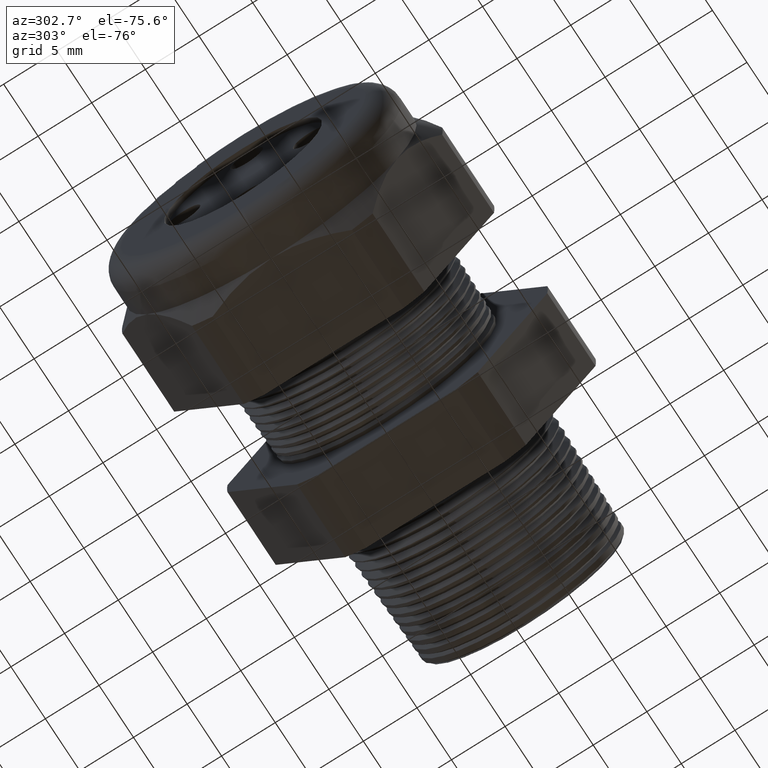
[diagram: clean part render]
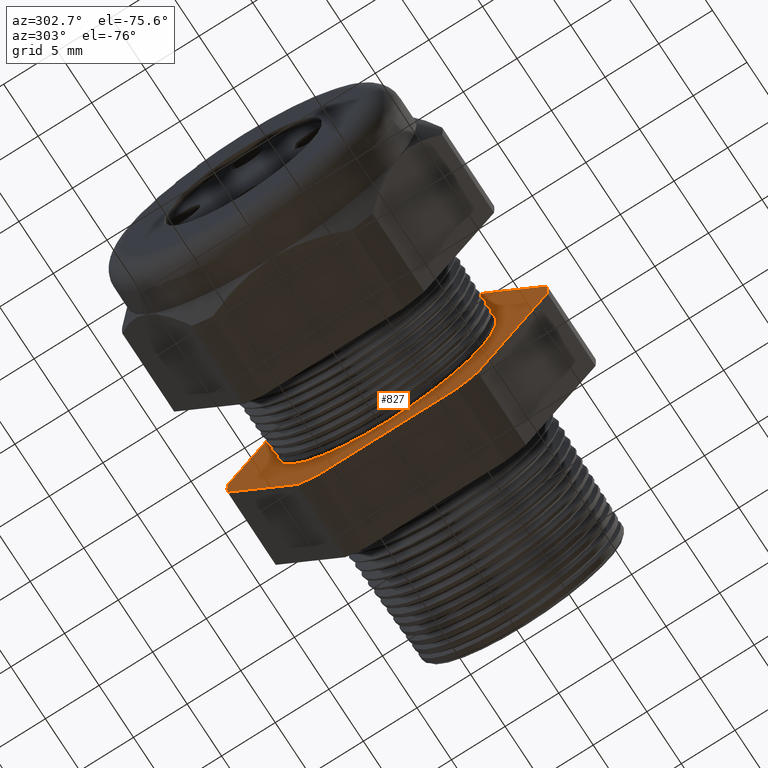
[diagram: same view with one face highlighted and labeled with its STEP entity id]
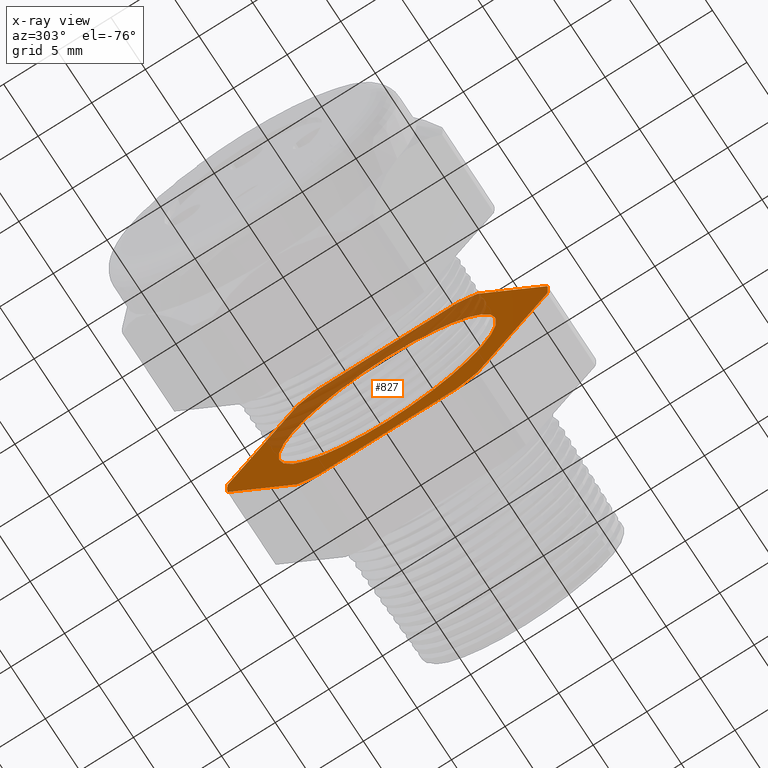
[diagram: x-ray of the same camera — body ghosted, the highlighted face saturated]
A machine part, auxiliary view. The second image highlights one B-rep face of the part: STEP entity #827.
The next image is the same camera in x-ray: the body ghosted, the highlighted face saturated — about 32% of this face is hidden behind the body in this view.
In plain terms, the highlighted planar face has unit normal (-1, 0, 0).
Its self-contained STEP definition (entity closure, byte-faithful):
#799 = EDGE_CURVE ( 'NONE', #824, #800, #3475, .T. ) ;
#800 = VERTEX_POINT ( 'NONE', #3466 ) ;
#801 = ORIENTED_EDGE ( 'NONE', *, *, #802, .T. ) ;
#802 = EDGE_CURVE ( 'NONE', #800, #803, #3465, .T. ) ;
#803 = VERTEX_POINT ( 'NONE', #3461 ) ;
#804 = ORIENTED_EDGE ( 'NONE', *, *, #805, .T. ) ;
#805 = EDGE_CURVE ( 'NONE', #803, #806, #3460, .T. ) ;
#806 = VERTEX_POINT ( 'NONE', #3517 ) ;
#807 = ORIENTED_EDGE ( 'NONE', *, *, #808, .T. ) ;
#808 = EDGE_CURVE ( 'NONE', #806, #809, #3516, .T. ) ;
#809 = VERTEX_POINT ( 'NONE', #3512 ) ;
#810 = EDGE_CURVE ( 'NONE', #836, #838, #3511, .T. ) ;
#811 = ORIENTED_EDGE ( 'NONE', *, *, #812, .T. ) ;
#812 = EDGE_CURVE ( 'NONE', #838, #813, #3506, .T. ) ;
#813 = VERTEX_POINT ( 'NONE', #3502 ) ;
#814 = ORIENTED_EDGE ( 'NONE', *, *, #815, .T. ) ;
#815 = EDGE_CURVE ( 'NONE', #813, #816, #3501, .T. ) ;
#816 = VERTEX_POINT ( 'NONE', #3496 ) ;
#817 = ORIENTED_EDGE ( 'NONE', *, *, #818, .T. ) ;
#818 = EDGE_CURVE ( 'NONE', #816, #819, #3495, .T. ) ;
#819 = VERTEX_POINT ( 'NONE', #3491 ) ;
#820 = ORIENTED_EDGE ( 'NONE', *, *, #821, .T. ) ;
#821 = EDGE_CURVE ( 'NONE', #819, #822, #3490, .T. ) ;
#822 = VERTEX_POINT ( 'NONE', #3550 ) ;
#823 = ORIENTED_EDGE ( 'NONE', *, *, #883, .T. ) ;
#824 = VERTEX_POINT ( 'NONE', #3549 ) ;
#827 = ADVANCED_FACE ( 'NONE', ( #3548, #3547 ), #3546, .T. ) ;
#828 = EDGE_LOOP ( 'NONE', ( #829, #831 ) ) ;
#829 = ORIENTED_EDGE ( 'NONE', *, *, #830, .T. ) ;
#830 = EDGE_CURVE ( 'NONE', #4105, #4106, #3541, .T. ) ;
#831 = ORIENTED_EDGE ( 'NONE', *, *, #4107, .T. ) ;
#832 = EDGE_LOOP ( 'NONE', ( #833, #837, #811, #814, #817, #820, #823, #884, #801, #804, #807, #870 ) ) ;
#833 = ORIENTED_EDGE ( 'NONE', *, *, #834, .T. ) ;
#834 = EDGE_CURVE ( 'NONE', #835, #836, #3536, .T. ) ;
#835 = VERTEX_POINT ( 'NONE', #3532 ) ;
#836 = VERTEX_POINT ( 'NONE', #3531 ) ;
#837 = ORIENTED_EDGE ( 'NONE', *, *, #810, .T. ) ;
#838 = VERTEX_POINT ( 'NONE', #3530 ) ;
#870 = ORIENTED_EDGE ( 'NONE', *, *, #871, .T. ) ;
#871 = EDGE_CURVE ( 'NONE', #809, #835, #3571, .T. ) ;
#883 = EDGE_CURVE ( 'NONE', #822, #824, #3604, .T. ) ;
#884 = ORIENTED_EDGE ( 'NONE', *, *, #799, .T. ) ;
#3457 = DIRECTION ( 'NONE',  ( -1.000000000000000000, 0.0000000000000000000, 0.0000000000000000000 ) ) ;
#3458 = CARTESIAN_POINT ( 'NONE',  ( -0.5855905511811022600, 0.0000000000000000000, 0.0000000000000000000 ) ) ;
#3459 = AXIS2_PLACEMENT_3D ( 'NONE', #3458, #3457, #3518 ) ;
#3460 = CIRCLE ( 'NONE', #3459, 0.5882999999999999300 ) ;
#3461 = CARTESIAN_POINT ( 'NONE',  ( -0.5855905511811020400, -0.3313250556190262000, 0.4861281698472627600 ) ) ;
#3462 = DIRECTION ( 'NONE',  ( 0.0000000000000000000, 0.4999999999999998300, 0.8660254037844388200 ) ) ;
#3463 = VECTOR ( 'NONE', #3462, 39.37007874015748100 ) ;
#3464 = CARTESIAN_POINT ( 'NONE',  ( -0.5855905511811022600, -0.1939934640057525700, 0.7239934640057522600 ) ) ;
#3465 = LINE ( 'NONE', #3464, #3463 ) ;
#3466 = CARTESIAN_POINT ( 'NONE',  ( -0.5855905511811020400, -0.5866618723924791300, 0.04387183015273703200 ) ) ;
#3467 = DIRECTION ( 'NONE',  ( 0.0000000000000000000, 0.0000000000000000000, 1.000000000000000000 ) ) ;
#3468 = DIRECTION ( 'NONE',  ( -1.000000000000000000, 0.0000000000000000000, 0.0000000000000000000 ) ) ;
#3469 = CARTESIAN_POINT ( 'NONE',  ( -0.5855905511811022600, 0.0000000000000000000, 0.0000000000000000000 ) ) ;
#3470 = AXIS2_PLACEMENT_3D ( 'NONE', #3469, #3468, #3467 ) ;
#3475 = CIRCLE ( 'NONE', #3470, 0.5883000000000000500 ) ;
#3489 = CARTESIAN_POINT ( 'NONE',  ( -0.5855905511811022600, 0.0000000000000000000, 0.0000000000000000000 ) ) ;
#3490 = CIRCLE ( 'NONE', #3553, 0.5883000000000000500 ) ;
#3491 = CARTESIAN_POINT ( 'NONE',  ( -0.5855905511811020400, -0.2553368167734529900, -0.5300000000000001400 ) ) ;
#3492 = DIRECTION ( 'NONE',  ( 0.0000000000000000000, -1.000000000000000000, 0.0000000000000000000 ) ) ;
#3493 = VECTOR ( 'NONE', #3492, 39.37007874015748100 ) ;
#3494 = CARTESIAN_POINT ( 'NONE',  ( -0.5855905511811022600, 1.060000000000000100, -0.5300000000000001400 ) ) ;
#3495 = LINE ( 'NONE', #3494, #3493 ) ;
#3496 = CARTESIAN_POINT ( 'NONE',  ( -0.5855905511811020400, 0.2553368167734529900, -0.5300000000000001400 ) ) ;
#3497 = DIRECTION ( 'NONE',  ( 0.0000000000000000000, 0.0000000000000000000, 1.000000000000000000 ) ) ;
#3498 = DIRECTION ( 'NONE',  ( -1.000000000000000000, 0.0000000000000000000, 0.0000000000000000000 ) ) ;
#3499 = CARTESIAN_POINT ( 'NONE',  ( -0.5855905511811022600, 0.0000000000000000000, 0.0000000000000000000 ) ) ;
#3500 = AXIS2_PLACEMENT_3D ( 'NONE', #3499, #3498, #3497 ) ;
#3501 = CIRCLE ( 'NONE', #3500, 0.5882999999999999300 ) ;
#3502 = CARTESIAN_POINT ( 'NONE',  ( -0.5855905511811022600, 0.3313250556190264200, -0.4861281698472627000 ) ) ;
#3503 = DIRECTION ( 'NONE',  ( 0.0000000000000000000, -0.4999999999999998300, -0.8660254037844386000 ) ) ;
#3504 = VECTOR ( 'NONE', #3503, 39.37007874015748900 ) ;
#3505 = CARTESIAN_POINT ( 'NONE',  ( -0.5855905511811022600, 0.7239934640057527100, 0.1939934640057523800 ) ) ;
#3506 = LINE ( 'NONE', #3505, #3504 ) ;
#3507 = DIRECTION ( 'NONE',  ( 0.0000000000000000000, 0.0000000000000000000, 1.000000000000000000 ) ) ;
#3508 = DIRECTION ( 'NONE',  ( -1.000000000000000000, 0.0000000000000000000, 0.0000000000000000000 ) ) ;
#3509 = CARTESIAN_POINT ( 'NONE',  ( -0.5855905511811022600, 0.0000000000000000000, 0.0000000000000000000 ) ) ;
#3510 = AXIS2_PLACEMENT_3D ( 'NONE', #3509, #3508, #3507 ) ;
#3511 = CIRCLE ( 'NONE', #3510, 0.5882999999999999300 ) ;
#3512 = CARTESIAN_POINT ( 'NONE',  ( -0.5855905511811020400, 0.2553368167734530500, 0.5300000000000001400 ) ) ;
#3513 = DIRECTION ( 'NONE',  ( 0.0000000000000000000, 1.000000000000000000, 0.0000000000000000000 ) ) ;
#3514 = VECTOR ( 'NONE', #3513, 39.37007874015748100 ) ;
#3515 = CARTESIAN_POINT ( 'NONE',  ( -0.5855905511811022600, 1.060000000000000100, 0.5300000000000001400 ) ) ;
#3516 = LINE ( 'NONE', #3515, #3514 ) ;
#3517 = CARTESIAN_POINT ( 'NONE',  ( -0.5855905511811020400, -0.2553368167734533200, 0.5299999999999999200 ) ) ;
#3518 = DIRECTION ( 'NONE',  ( 0.0000000000000000000, 0.0000000000000000000, 1.000000000000000000 ) ) ;
#3530 = CARTESIAN_POINT ( 'NONE',  ( -0.5855905511811020400, 0.5866618723924790200, -0.04387183015273742700 ) ) ;
#3531 = CARTESIAN_POINT ( 'NONE',  ( -0.5855905511811020400, 0.5866618723924789100, 0.04387183015273755900 ) ) ;
#3532 = CARTESIAN_POINT ( 'NONE',  ( -0.5855905511811020400, 0.3313250556190263700, 0.4861281698472626500 ) ) ;
#3533 = DIRECTION ( 'NONE',  ( 0.0000000000000000000, 0.4999999999999998300, -0.8660254037844386000 ) ) ;
#3534 = VECTOR ( 'NONE', #3533, 39.37007874015748900 ) ;
#3535 = CARTESIAN_POINT ( 'NONE',  ( -0.5855905511811022600, 0.7239934640057524900, -0.1939934640057524000 ) ) ;
#3536 = LINE ( 'NONE', #3535, #3534 ) ;
#3537 = DIRECTION ( 'NONE',  ( 0.0000000000000000000, 0.0000000000000000000, -1.000000000000000000 ) ) ;
#3538 = DIRECTION ( 'NONE',  ( 1.000000000000000000, 0.0000000000000000000, 0.0000000000000000000 ) ) ;
#3539 = CARTESIAN_POINT ( 'NONE',  ( -0.5855905511811022600, 0.0000000000000000000, 0.0000000000000000000 ) ) ;
#3540 = AXIS2_PLACEMENT_3D ( 'NONE', #3539, #3538, #3537 ) ;
#3541 = CIRCLE ( 'NONE', #3540, 0.3993587891391309800 ) ;
#3542 = DIRECTION ( 'NONE',  ( 0.0000000000000000000, 0.0000000000000000000, 1.000000000000000000 ) ) ;
#3543 = DIRECTION ( 'NONE',  ( -1.000000000000000000, 0.0000000000000000000, 0.0000000000000000000 ) ) ;
#3544 = CARTESIAN_POINT ( 'NONE',  ( -0.5855905511811022600, 1.060000000000000100, 0.0000000000000000000 ) ) ;
#3545 = AXIS2_PLACEMENT_3D ( 'NONE', #3544, #3543, #3542 ) ;
#3546 = PLANE ( 'NONE',  #3545 ) ;
#3547 = FACE_OUTER_BOUND ( 'NONE', #832, .T. ) ;
#3548 = FACE_BOUND ( 'NONE', #828, .T. ) ;
#3549 = CARTESIAN_POINT ( 'NONE',  ( -0.5855905511811020400, -0.5866618723924791300, -0.04387183015273715000 ) ) ;
#3550 = CARTESIAN_POINT ( 'NONE',  ( -0.5855905511811020400, -0.3313250556190258700, -0.4861281698472630400 ) ) ;
#3551 = DIRECTION ( 'NONE',  ( 0.0000000000000000000, 0.0000000000000000000, 1.000000000000000000 ) ) ;
#3552 = DIRECTION ( 'NONE',  ( -1.000000000000000000, 0.0000000000000000000, 0.0000000000000000000 ) ) ;
#3553 = AXIS2_PLACEMENT_3D ( 'NONE', #3489, #3552, #3551 ) ;
#3567 = DIRECTION ( 'NONE',  ( 0.0000000000000000000, 0.0000000000000000000, 1.000000000000000000 ) ) ;
#3568 = DIRECTION ( 'NONE',  ( -1.000000000000000000, 0.0000000000000000000, 0.0000000000000000000 ) ) ;
#3569 = CARTESIAN_POINT ( 'NONE',  ( -0.5855905511811022600, 0.0000000000000000000, 0.0000000000000000000 ) ) ;
#3570 = AXIS2_PLACEMENT_3D ( 'NONE', #3569, #3568, #3567 ) ;
#3571 = CIRCLE ( 'NONE', #3570, 0.5882999999999999300 ) ;
#3601 = DIRECTION ( 'NONE',  ( 0.0000000000000000000, -0.5000000000000001100, 0.8660254037844386000 ) ) ;
#3602 = VECTOR ( 'NONE', #3601, 39.37007874015748100 ) ;
#3603 = CARTESIAN_POINT ( 'NONE',  ( -0.5855905511811022600, -0.1939934640057525700, -0.7239934640057527100 ) ) ;
#3604 = LINE ( 'NONE', #3603, #3602 ) ;
#4105 = VERTEX_POINT ( 'NONE', #5329 ) ;
#4106 = VERTEX_POINT ( 'NONE', #5328 ) ;
#4107 = EDGE_CURVE ( 'NONE', #4106, #4105, #5326, .T. ) ;
#5322 = DIRECTION ( 'NONE',  ( 0.0000000000000000000, 0.0000000000000000000, -1.000000000000000000 ) ) ;
#5323 = DIRECTION ( 'NONE',  ( 1.000000000000000000, 0.0000000000000000000, 0.0000000000000000000 ) ) ;
#5324 = CARTESIAN_POINT ( 'NONE',  ( -0.5855905511811022600, 0.0000000000000000000, 0.0000000000000000000 ) ) ;
#5325 = AXIS2_PLACEMENT_3D ( 'NONE', #5324, #5323, #5322 ) ;
#5326 = CIRCLE ( 'NONE', #5325, 0.3993587891391309800 ) ;
#5328 = CARTESIAN_POINT ( 'NONE',  ( -0.5855905511811022600, 4.893223653774268400E-017, -0.3993587891391309800 ) ) ;
#5329 = CARTESIAN_POINT ( 'NONE',  ( -0.5855905511811022600, 0.0000000000000000000, 0.3993587891391309800 ) ) ;